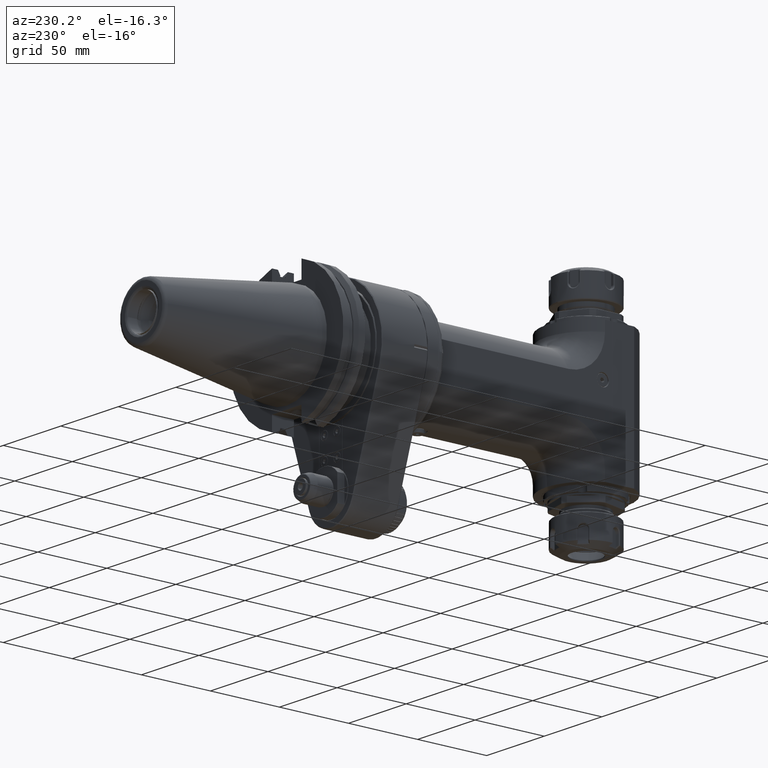
[diagram: clean part render]
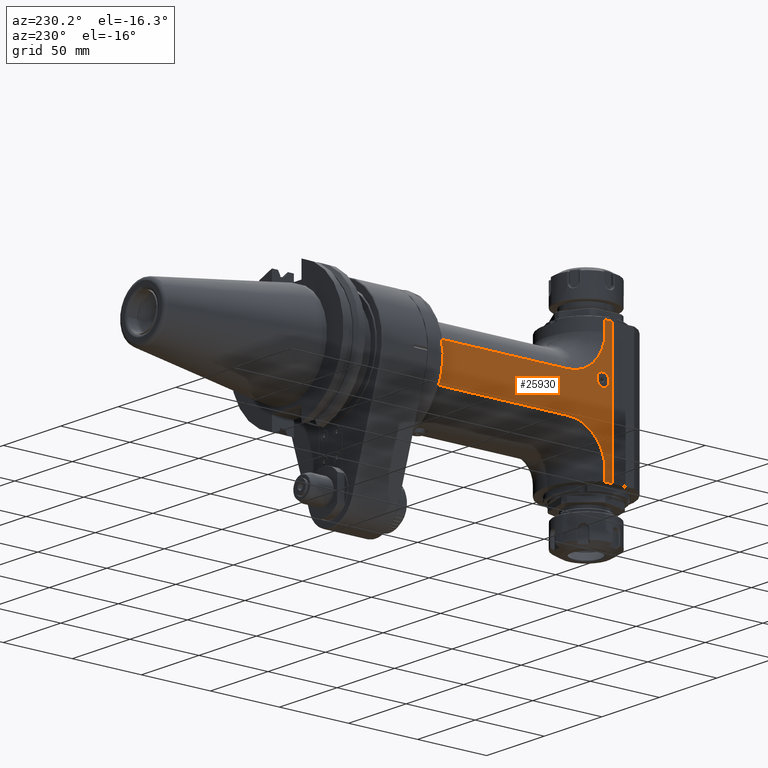
[diagram: same view with one face highlighted and labeled with its STEP entity id]
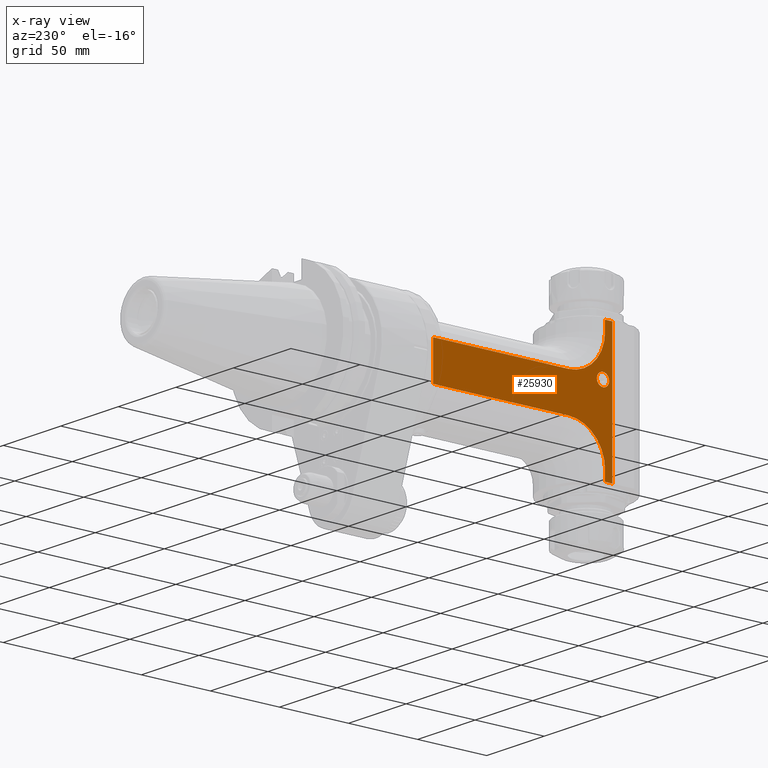
[diagram: x-ray of the same camera — body ghosted, the highlighted face saturated]
A machine part, auxiliary view. The second image highlights one B-rep face of the part: STEP entity #25930.
The next image is the same camera in x-ray: the body ghosted, the highlighted face saturated — about 0% of this face is hidden behind the body in this view.
In plain terms, the highlighted planar face has unit normal (-1, -0, 0).
Its self-contained STEP definition (entity closure, byte-faithful):
#529=FACE_BOUND('',#5205,.T.);
#1623=CIRCLE('',#28131,26.47225074153);
#1624=CIRCLE('',#28132,26.47225074153);
#1625=CIRCLE('',#28133,4.45007683198855);
#3595=FACE_OUTER_BOUND('',#5204,.T.);
#5204=EDGE_LOOP('',(#19730,#19731,#19732,#19733,#19734,#19735,#19736,#19737,
#19738,#19739));
#5205=EDGE_LOOP('',(#19740));
#7048=LINE('',#41473,#9038);
#7075=LINE('',#41531,#9065);
#7128=LINE('',#41975,#9118);
#7129=LINE('',#41977,#9119);
#7130=LINE('',#41981,#9120);
#7131=LINE('',#41983,#9121);
#7132=LINE('',#41985,#9122);
#7133=LINE('',#41988,#9123);
#9038=VECTOR('',#32530,5.277749258469);
#9065=VECTOR('',#32567,5.277749258469);
#9118=VECTOR('',#32728,7.);
#9119=VECTOR('',#32731,94.);
#9120=VECTOR('',#32734,98.);
#9121=VECTOR('',#32735,27.05549851694);
#9122=VECTOR('',#32736,98.);
#9123=VECTOR('',#32739,7.);
#11167=VERTEX_POINT('',#41470);
#11168=VERTEX_POINT('',#41472);
#11193=VERTEX_POINT('',#41528);
#11194=VERTEX_POINT('',#41530);
#11343=VERTEX_POINT('',#41973);
#11344=VERTEX_POINT('',#41978);
#11345=VERTEX_POINT('',#41980);
#11346=VERTEX_POINT('',#41982);
#11347=VERTEX_POINT('',#41984);
#11348=VERTEX_POINT('',#41986);
#11349=VERTEX_POINT('',#41989);
#14253=EDGE_CURVE('',#11168,#11167,#7048,.T.);
#14282=EDGE_CURVE('',#11193,#11194,#7075,.T.);
#14434=EDGE_CURVE('',#11167,#11343,#7128,.T.);
#14435=EDGE_CURVE('',#11168,#11193,#7129,.T.);
#14436=EDGE_CURVE('',#11343,#11344,#1623,.T.);
#14437=EDGE_CURVE('',#11345,#11344,#7130,.T.);
#14438=EDGE_CURVE('',#11345,#11346,#7131,.T.);
#14439=EDGE_CURVE('',#11346,#11347,#7132,.T.);
#14440=EDGE_CURVE('',#11348,#11347,#1624,.T.);
#14441=EDGE_CURVE('',#11348,#11194,#7133,.T.);
#14442=EDGE_CURVE('',#11349,#11349,#1625,.T.);
#19730=ORIENTED_EDGE('',*,*,#14435,.F.);
#19731=ORIENTED_EDGE('',*,*,#14253,.T.);
#19732=ORIENTED_EDGE('',*,*,#14434,.T.);
#19733=ORIENTED_EDGE('',*,*,#14436,.T.);
#19734=ORIENTED_EDGE('',*,*,#14437,.F.);
#19735=ORIENTED_EDGE('',*,*,#14438,.T.);
#19736=ORIENTED_EDGE('',*,*,#14439,.T.);
#19737=ORIENTED_EDGE('',*,*,#14440,.F.);
#19738=ORIENTED_EDGE('',*,*,#14441,.T.);
#19739=ORIENTED_EDGE('',*,*,#14282,.F.);
#19740=ORIENTED_EDGE('',*,*,#14442,.T.);
#24987=PLANE('',#28130);
#25930=ADVANCED_FACE('',(#3595,#529),#24987,.T.);
#28130=AXIS2_PLACEMENT_3D('',#41976,#32729,#32730);
#28131=AXIS2_PLACEMENT_3D('',#41979,#32732,#32733);
#28132=AXIS2_PLACEMENT_3D('',#41987,#32737,#32738);
#28133=AXIS2_PLACEMENT_3D('',#41990,#32740,#32741);
#32530=DIRECTION('',(0.,1.,0.));
#32567=DIRECTION('',(0.,1.,0.));
#32728=DIRECTION('',(0.,0.,-1.));
#32729=DIRECTION('center_axis',(-1.,0.,0.));
#32730=DIRECTION('ref_axis',(0.,1.,0.));
#32731=DIRECTION('',(0.,0.,-1.));
#32732=DIRECTION('center_axis',(1.,0.,0.));
#32733=DIRECTION('ref_axis',(0.,-1.,0.));
#32734=DIRECTION('',(0.,-1.,0.));
#32735=DIRECTION('',(0.,0.,-1.));
#32736=DIRECTION('',(0.,-1.,0.));
#32737=DIRECTION('center_axis',(-1.,0.,0.));
#32738=DIRECTION('ref_axis',(0.,-1.,0.));
#32739=DIRECTION('',(0.,0.,-1.));
#32740=DIRECTION('center_axis',(1.,0.,0.));
#32741=DIRECTION('ref_axis',(0.,0.,1.));
#41470=CARTESIAN_POINT('',(-29.,-166.2722507415,47.));
#41472=CARTESIAN_POINT('',(-29.,-171.55,47.));
#41473=CARTESIAN_POINT('',(-29.,-171.55,47.));
#41528=CARTESIAN_POINT('',(-29.,-171.55,-47.));
#41530=CARTESIAN_POINT('',(-29.,-166.2722507415,-47.));
#41531=CARTESIAN_POINT('',(-29.,-171.55,-47.));
#41973=CARTESIAN_POINT('',(-29.,-166.2722507415,40.));
#41975=CARTESIAN_POINT('',(-29.,-166.2722507415,47.));
#41976=CARTESIAN_POINT('Origin',(-29.,-187.3277492585,55.));
#41977=CARTESIAN_POINT('',(-29.,-171.55,47.));
#41978=CARTESIAN_POINT('',(-29.,-139.8,13.52774925847));
#41979=CARTESIAN_POINT('Origin',(-29.,-139.8,40.));
#41980=CARTESIAN_POINT('',(-29.,-41.8,13.52774925847));
#41981=CARTESIAN_POINT('',(-29.,-41.8,13.52774925847));
#41982=CARTESIAN_POINT('',(-29.,-41.8,-13.52774925847));
#41983=CARTESIAN_POINT('',(-29.,-41.8,13.52774925847));
#41984=CARTESIAN_POINT('',(-29.,-139.8,-13.52774925847));
#41985=CARTESIAN_POINT('',(-29.,-41.8,-13.52774925847));
#41986=CARTESIAN_POINT('',(-29.,-166.2722507415,-40.));
#41987=CARTESIAN_POINT('Origin',(-29.,-139.8,-40.));
#41988=CARTESIAN_POINT('',(-29.,-166.2722507415,-40.));
#41989=CARTESIAN_POINT('',(-29.,-164.8,7.54992316801144));
#41990=CARTESIAN_POINT('Origin',(-29.,-164.8,12.));